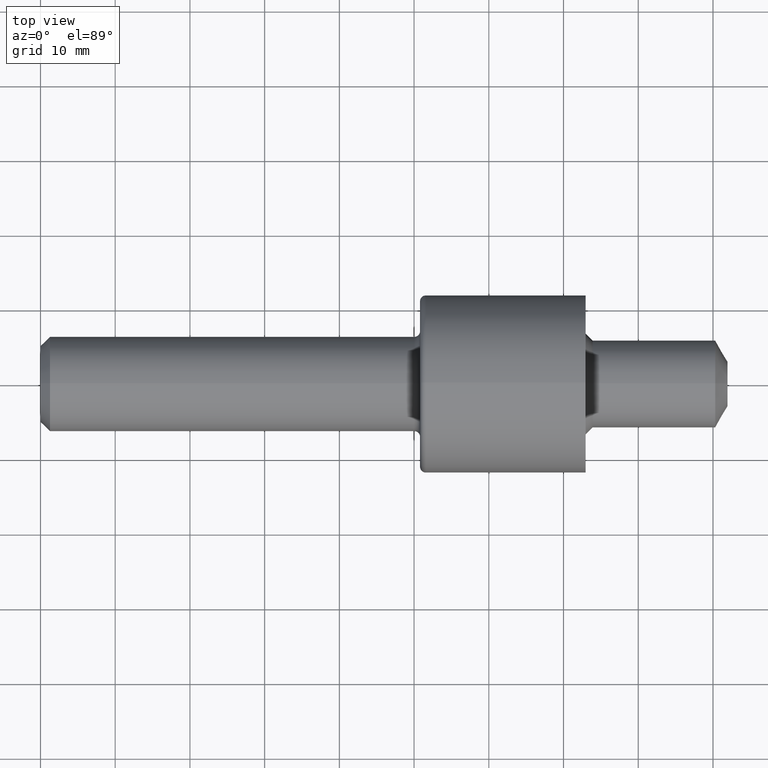
[diagram: clean part render]
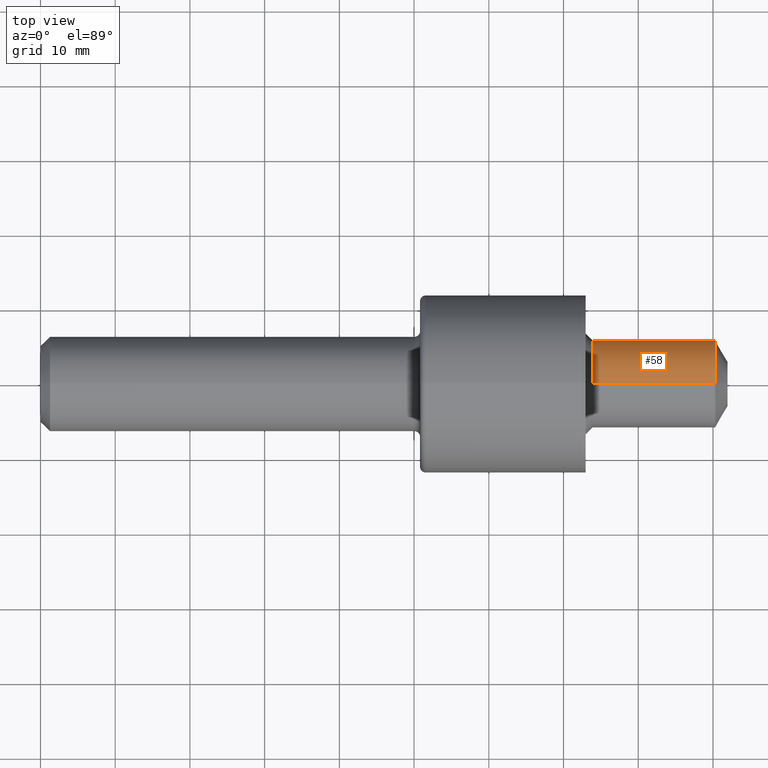
[diagram: same view with one face highlighted and labeled with its STEP entity id]
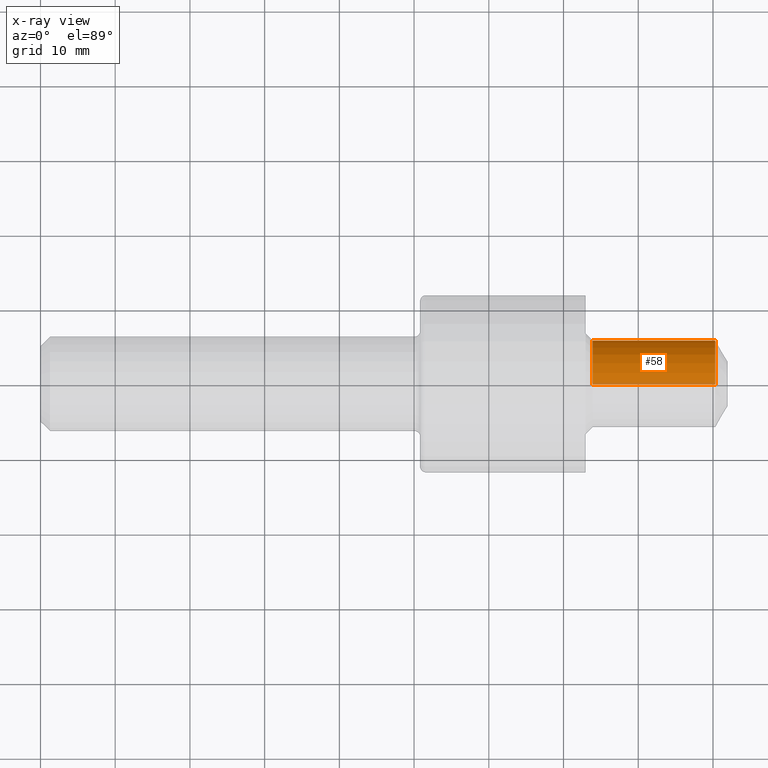
[diagram: x-ray of the same camera — body ghosted, the highlighted face saturated]
A machine part, top view. The second image highlights one B-rep face of the part: STEP entity #58.
The next image is the same camera in x-ray: the body ghosted, the highlighted face saturated — about 3% of this face is hidden behind the body in this view.
In plain terms, the highlighted cylindrical surface (partial cylindrical patch) has radius 5.8293 mm, axis along (-1, -0, -0).
Its self-contained STEP definition (entity closure, byte-faithful):
#15 = AXIS2_PLACEMENT_3D ( 'NONE', #169, #213, #267 ) ;
#29 = CARTESIAN_POINT ( 'NONE',  ( 3.555000000000000160, 2.810564404043175550E-17, -0.2295000000000000095 ) ) ;
#58 = ADVANCED_FACE ( 'NONE', ( #509 ), #400, .T. ) ;
#89 = VERTEX_POINT ( 'NONE', #222 ) ;
#93 = CARTESIAN_POINT ( 'NONE',  ( 3.555000000000000160, 0.0000000000000000000, 0.0000000000000000000 ) ) ;
#95 = ORIENTED_EDGE ( 'NONE', *, *, #313, .T. ) ;
#100 = EDGE_LOOP ( 'NONE', ( #556, #95, #154, #364 ) ) ;
#113 = LINE ( 'NONE', #161, #410 ) ;
#123 = DIRECTION ( 'NONE',  ( -1.000000000000000000, -0.0000000000000000000, -0.0000000000000000000 ) ) ;
#154 = ORIENTED_EDGE ( 'NONE', *, *, #269, .F. ) ;
#161 = CARTESIAN_POINT ( 'NONE',  ( 0.0000000000000000000, 2.810564404043175550E-17, -0.2295000000000000095 ) ) ;
#165 = CIRCLE ( 'NONE', #445, 0.2295000000000000095 ) ;
#169 = CARTESIAN_POINT ( 'NONE',  ( 0.0000000000000000000, 0.0000000000000000000, 0.0000000000000000000 ) ) ;
#176 = VECTOR ( 'NONE', #183, 39.37007874015748143 ) ;
#178 = CARTESIAN_POINT ( 'NONE',  ( 0.0000000000000000000, 0.0000000000000000000, 0.2295000000000000095 ) ) ;
#183 = DIRECTION ( 'NONE',  ( -1.000000000000000000, -0.0000000000000000000, -0.0000000000000000000 ) ) ;
#204 = DIRECTION ( 'NONE',  ( -1.000000000000000000, -0.0000000000000000000, -0.0000000000000000000 ) ) ;
#207 = VERTEX_POINT ( 'NONE', #322 ) ;
#208 = DIRECTION ( 'NONE',  ( 0.0000000000000000000, 0.0000000000000000000, 1.000000000000000000 ) ) ;
#213 = DIRECTION ( 'NONE',  ( -1.000000000000000000, -0.0000000000000000000, -0.0000000000000000000 ) ) ;
#222 = CARTESIAN_POINT ( 'NONE',  ( 3.555000000000000160, 0.0000000000000000000, 0.2295000000000000095 ) ) ;
#267 = DIRECTION ( 'NONE',  ( 0.0000000000000000000, 0.0000000000000000000, 1.000000000000000000 ) ) ;
#269 = EDGE_CURVE ( 'NONE', #207, #504, #374, .T. ) ;
#272 = VERTEX_POINT ( 'NONE', #29 ) ;
#313 = EDGE_CURVE ( 'NONE', #272, #504, #113, .T. ) ;
#322 = CARTESIAN_POINT ( 'NONE',  ( 2.909000000000002029, 0.0000000000000000000, 0.2295000000000000095 ) ) ;
#340 = AXIS2_PLACEMENT_3D ( 'NONE', #426, #123, #208 ) ;
#349 = EDGE_CURVE ( 'NONE', #89, #272, #165, .T. ) ;
#364 = ORIENTED_EDGE ( 'NONE', *, *, #389, .F. ) ;
#374 = CIRCLE ( 'NONE', #340, 0.2295000000000000095 ) ;
#389 = EDGE_CURVE ( 'NONE', #89, #207, #511, .T. ) ;
#398 = DIRECTION ( 'NONE',  ( 0.0000000000000000000, 0.0000000000000000000, 1.000000000000000000 ) ) ;
#400 = CYLINDRICAL_SURFACE ( 'NONE', #15, 0.2295000000000000095 ) ;
#410 = VECTOR ( 'NONE', #433, 39.37007874015748143 ) ;
#426 = CARTESIAN_POINT ( 'NONE',  ( 2.909000000000002029, 0.0000000000000000000, 0.0000000000000000000 ) ) ;
#433 = DIRECTION ( 'NONE',  ( -1.000000000000000000, -0.0000000000000000000, -0.0000000000000000000 ) ) ;
#445 = AXIS2_PLACEMENT_3D ( 'NONE', #93, #204, #398 ) ;
#488 = CARTESIAN_POINT ( 'NONE',  ( 2.909000000000002029, 3.037124061885436008E-17, -0.2295000000000000095 ) ) ;
#504 = VERTEX_POINT ( 'NONE', #488 ) ;
#509 = FACE_OUTER_BOUND ( 'NONE', #100, .T. ) ;
#511 = LINE ( 'NONE', #178, #176 ) ;
#556 = ORIENTED_EDGE ( 'NONE', *, *, #349, .T. ) ;